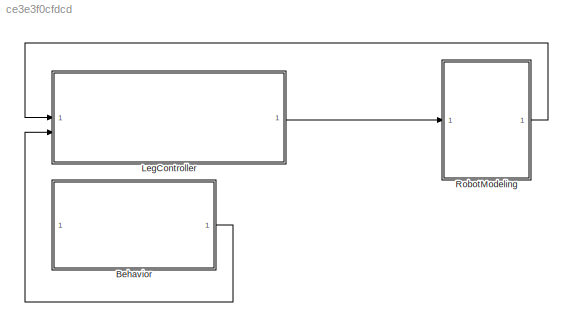
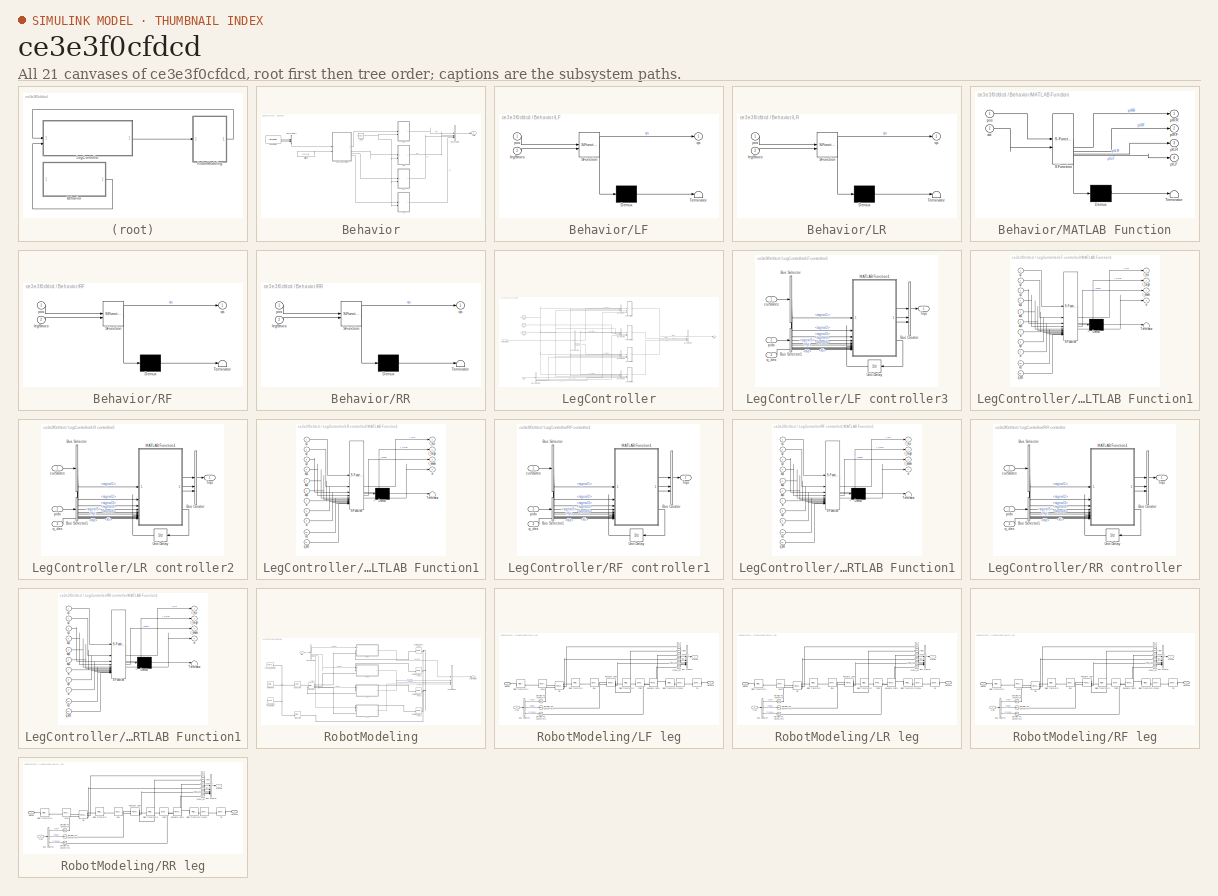
[diagram: thumbnail index - all 21 canvases of the model, root first then tree order]
MODEL slx_ce3e3f0cfdcd
KIND model
CONFIG AbsTol = auto
CONFIG EnableMultiTasking = off
CONFIG FixedStep = auto
CONFIG MaxStep = auto
CONFIG MinStep = auto
CONFIG RelTol = 1e-3
CONFIG SampleTimeConstraint = Unconstrained
CONFIG SolverName = daessc
CONFIG StartTime = 0.0
CONFIG StopTime = 10
BLOCK [SubSystem] Behavior
BLOCK [BusCreator] Behavior/Bus Creator
  DisplayOption = bar
  InheritFromInputs = on
  Inputs = RR,RF,LR,LF
BLOCK [BusCreator] Behavior/Bus Creator1
  DisplayOption = bar
  InheritFromInputs = on
  Inputs = 3
BLOCK [SubSystem] Behavior/LF
  ErrorFcn = Stateflow.Translate.translate
  PermitHierarchicalResolution = ExplicitOnly
  SFBlockType = MATLAB Function
  TreatAsAtomicUnit = on
BLOCK [Demux] Behavior/LF/ Demux 
  Outputs = 1
BLOCK [S-Function] Behavior/LF/ SFunction 
  EnableBusSupport = on
  FunctionName = sf_sfun
  PortCounts = [2 2]
  SFcnIsStateOwnerBlock = off
  SFunctionDeploymentMode = off
  Tag = Stateflow S-Function 8
BLOCK [Terminator] Behavior/LF/ Terminator 
BLOCK [Inport] Behavior/LF/legStrucs
  Port = 2
BLOCK [Inport] Behavior/LF/pos
BLOCK [Outport] Behavior/LF/qs
BLOCK [SubSystem] Behavior/LR
  ErrorFcn = Stateflow.Translate.translate
  PermitHierarchicalResolution = ExplicitOnly
  SFBlockType = MATLAB Function
  TreatAsAtomicUnit = on
BLOCK [Demux] Behavior/LR/ Demux 
  Outputs = 1
BLOCK [S-Function] Behavior/LR/ SFunction 
  EnableBusSupport = on
  FunctionName = sf_sfun
  PortCounts = [2 2]
  SFcnIsStateOwnerBlock = off
  SFunctionDeploymentMode = off
  Tag = Stateflow S-Function 7
BLOCK [Terminator] Behavior/LR/ Terminator 
BLOCK [Inport] Behavior/LR/legStrucs
  Port = 2
BLOCK [Inport] Behavior/LR/pos
BLOCK [Outport] Behavior/LR/qs
BLOCK [Constant] Behavior/Legs
  Value = [0.2;0.8;0.8]
BLOCK [SubSystem] Behavior/MATLAB Function
  ErrorFcn = Stateflow.Translate.translate
  PermitHierarchicalResolution = ExplicitOnly
  SFBlockType = MATLAB Function
  TreatAsAtomicUnit = on
BLOCK [Demux] Behavior/MATLAB Function/ Demux 
  Outputs = 1
BLOCK [S-Function] Behavior/MATLAB Function/ SFunction 
  EnableBusSupport = on
  FunctionName = sf_sfun
  PortCounts = [2 5]
  SFcnIsStateOwnerBlock = off
  SFunctionDeploymentMode = off
  Tag = Stateflow S-Function 9
BLOCK [Terminator] Behavior/MATLAB Function/ Terminator 
BLOCK [Inport] Behavior/MATLAB Function/att
  Port = 2
BLOCK [Outport] Behavior/MATLAB Function/plLF
  Port = 4
BLOCK [Outport] Behavior/MATLAB Function/plLR
  Port = 3
BLOCK [Outport] Behavior/MATLAB Function/plRF
  Port = 2
BLOCK [Outport] Behavior/MATLAB Function/plRR
BLOCK [Inport] Behavior/MATLAB Function/pos
BLOCK [SubSystem] Behavior/RF
  ErrorFcn = Stateflow.Translate.translate
  PermitHierarchicalResolution = ExplicitOnly
  SFBlockType = MATLAB Function
  TreatAsAtomicUnit = on
BLOCK [Demux] Behavior/RF/ Demux 
  Outputs = 1
BLOCK [S-Function] Behavior/RF/ SFunction 
  EnableBusSupport = on
  FunctionName = sf_sfun
  PortCounts = [2 2]
  SFcnIsStateOwnerBlock = off
  SFunctionDeploymentMode = off
  Tag = Stateflow S-Function 6
BLOCK [Terminator] Behavior/RF/ Terminator 
BLOCK [Inport] Behavior/RF/legStrucs
  Port = 2
BLOCK [Inport] Behavior/RF/pos
BLOCK [Outport] Behavior/RF/qs
BLOCK [SubSystem] Behavior/RR
  ErrorFcn = Stateflow.Translate.translate
  PermitHierarchicalResolution = ExplicitOnly
  SFBlockType = MATLAB Function
  TreatAsAtomicUnit = on
BLOCK [Demux] Behavior/RR/ Demux 
  Outputs = 1
BLOCK [S-Function] Behavior/RR/ SFunction 
  EnableBusSupport = on
  FunctionName = sf_sfun
  PortCounts = [2 2]
  SFcnIsStateOwnerBlock = off
  SFunctionDeploymentMode = off
  Tag = Stateflow S-Function 5
BLOCK [Terminator] Behavior/RR/ Terminator 
BLOCK [Inport] Behavior/RR/legStrucs
  Port = 2
BLOCK [Inport] Behavior/RR/pos
BLOCK [Outport] Behavior/RR/qs
BLOCK [Reference] Behavior/Signal Editor  REF=SignalEditorBlockLib/Signal Editor
  LibrarySourceBlock = simulink/Sources/Signal Editor
  SourceBlock = SignalEditorBlockLib/Signal Editor
  SourceType = SignalEditor
  UserDataPersistent = on
BLOCK [Constant] Behavior/attitude
  Value = [0 0 0]
BLOCK [Outport] Behavior/refs
BLOCK [SubSystem] LegController
BLOCK [BusCreator] LegController/Bus Creator
  DisplayOption = bar
  InheritFromInputs = on
  Inputs = Kp,Ki,Kd
BLOCK [BusCreator] LegController/Bus Creator1
  DisplayOption = bar
  InheritFromInputs = on
  Inputs = Kp,Ki,Kd
BLOCK [BusCreator] LegController/Bus Creator2
  DisplayOption = bar
  InheritFromInputs = on
  Inputs = Kp,Ki,Kd
BLOCK [BusCreator] LegController/Bus Creator3
  DisplayOption = bar
  InheritFromInputs = on
  Inputs = Kp,Ki,Kd
BLOCK [BusCreator] LegController/Bus Creator4
  DisplayOption = bar
  InheritFromInputs = on
  Inputs = RRtrqs,RFtrqs,LRtrqs,LFtrqs
BLOCK [BusSelector] LegController/Bus Selector4
  OutputSignals = RRstates,RFstates,LRstates,LFstates
BLOCK [BusSelector] LegController/Bus Selector5
  OutputSignals = RR,RF,LR,LF
BLOCK [Inport] LegController/Current States
BLOCK [Constant] LegController/Kd
  Value = [100;650;600]
BLOCK [Constant] LegController/Ki
  Value = [10;15;5]
BLOCK [Constant] LegController/Kp
  Value = [200;450;450]
BLOCK [SubSystem] LegController/LF controller3
BLOCK [BusCreator] LegController/LF controller3/Bus Creator
  DisplayOption = bar
  InheritFromInputs = on
  Inputs = 3
BLOCK [BusSelector] LegController/LF controller3/Bus Selector
  OutputSignals = signal1,signal2,signal3,signal4,signal5,signal6
BLOCK [BusSelector] LegController/LF controller3/Bus Selector1
  OutputSignals = Kp,Ki,Kd
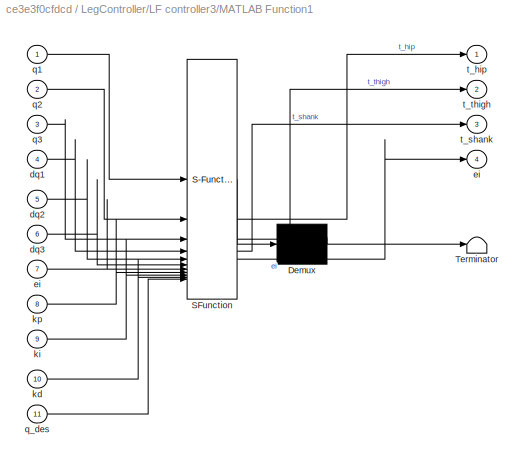
BLOCK [SubSystem] LegController/LF controller3/MATLAB Function1
  ErrorFcn = Stateflow.Translate.translate
  PermitHierarchicalResolution = ExplicitOnly
  SFBlockType = MATLAB Function
  TreatAsAtomicUnit = on
BLOCK [Demux] LegController/LF controller3/MATLAB Function1/ Demux 
  Outputs = 1
BLOCK [S-Function] LegController/LF controller3/MATLAB Function1/ SFunction 
  EnableBusSupport = on
  FunctionName = sf_sfun
  PortCounts = [11 5]
  SFcnIsStateOwnerBlock = off
  SFunctionDeploymentMode = off
  Tag = Stateflow S-Function 4
BLOCK [Terminator] LegController/LF controller3/MATLAB Function1/ Terminator 
BLOCK [Inport] LegController/LF controller3/MATLAB Function1/dq1
  Port = 4
BLOCK [Inport] LegController/LF controller3/MATLAB Function1/dq2
  Port = 5
BLOCK [Inport] LegController/LF controller3/MATLAB Function1/dq3
  Port = 6
BLOCK [Outport] LegController/LF controller3/MATLAB Function1/ei
  Port = 4
BLOCK [Inport] LegController/LF controller3/MATLAB Function1/ei 
  Port = 7
BLOCK [Inport] LegController/LF controller3/MATLAB Function1/kd
  Port = 10
BLOCK [Inport] LegController/LF controller3/MATLAB Function1/ki
  Port = 9
BLOCK [Inport] LegController/LF controller3/MATLAB Function1/kp
  Port = 8
BLOCK [Inport] LegController/LF controller3/MATLAB Function1/q1
BLOCK [Inport] LegController/LF controller3/MATLAB Function1/q2
  Port = 2
BLOCK [Inport] LegController/LF controller3/MATLAB Function1/q3
  Port = 3
BLOCK [Inport] LegController/LF controller3/MATLAB Function1/q_des
  Port = 11
BLOCK [Outport] LegController/LF controller3/MATLAB Function1/t_hip
BLOCK [Outport] LegController/LF controller3/MATLAB Function1/t_shank
  Port = 3
BLOCK [Outport] LegController/LF controller3/MATLAB Function1/t_thigh
  Port = 2
BLOCK [Outport] LegController/LF controller3/Trqs
BLOCK [UnitDelay] LegController/LF controller3/Unit Delay
  HasFrameUpgradeWarning = on
  InitialCondition = [0;0;0]
  SampleTime = -1
BLOCK [Inport] LegController/LF controller3/curStates
BLOCK [Inport] LegController/LF controller3/pids
  Port = 2
BLOCK [Inport] LegController/LF controller3/q_des
  Port = 3
BLOCK [SubSystem] LegController/LR controller2
BLOCK [BusCreator] LegController/LR controller2/Bus Creator
  DisplayOption = bar
  InheritFromInputs = on
  Inputs = 3
BLOCK [BusSelector] LegController/LR controller2/Bus Selector
  OutputSignals = signal1,signal2,signal3,signal4,signal5,signal6
BLOCK [BusSelector] LegController/LR controller2/Bus Selector1
  OutputSignals = Kp,Ki,Kd
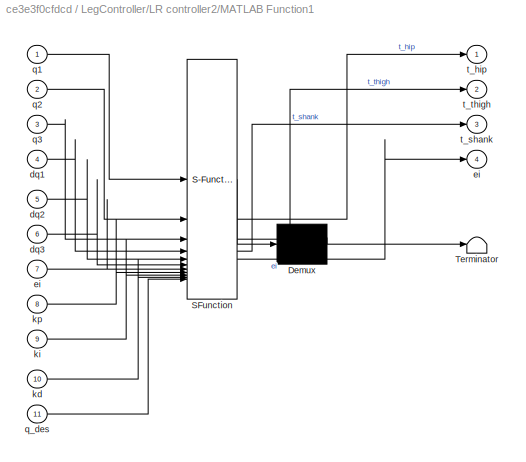
BLOCK [SubSystem] LegController/LR controller2/MATLAB Function1
  ErrorFcn = Stateflow.Translate.translate
  PermitHierarchicalResolution = ExplicitOnly
  SFBlockType = MATLAB Function
  TreatAsAtomicUnit = on
BLOCK [Demux] LegController/LR controller2/MATLAB Function1/ Demux 
  Outputs = 1
BLOCK [S-Function] LegController/LR controller2/MATLAB Function1/ SFunction 
  EnableBusSupport = on
  FunctionName = sf_sfun
  PortCounts = [11 5]
  SFcnIsStateOwnerBlock = off
  SFunctionDeploymentMode = off
  Tag = Stateflow S-Function 3
BLOCK [Terminator] LegController/LR controller2/MATLAB Function1/ Terminator 
BLOCK [Inport] LegController/LR controller2/MATLAB Function1/dq1
  Port = 4
BLOCK [Inport] LegController/LR controller2/MATLAB Function1/dq2
  Port = 5
BLOCK [Inport] LegController/LR controller2/MATLAB Function1/dq3
  Port = 6
BLOCK [Outport] LegController/LR controller2/MATLAB Function1/ei
  Port = 4
BLOCK [Inport] LegController/LR controller2/MATLAB Function1/ei 
  Port = 7
BLOCK [Inport] LegController/LR controller2/MATLAB Function1/kd
  Port = 10
BLOCK [Inport] LegController/LR controller2/MATLAB Function1/ki
  Port = 9
BLOCK [Inport] LegController/LR controller2/MATLAB Function1/kp
  Port = 8
BLOCK [Inport] LegController/LR controller2/MATLAB Function1/q1
BLOCK [Inport] LegController/LR controller2/MATLAB Function1/q2
  Port = 2
BLOCK [Inport] LegController/LR controller2/MATLAB Function1/q3
  Port = 3
BLOCK [Inport] LegController/LR controller2/MATLAB Function1/q_des
  Port = 11
BLOCK [Outport] LegController/LR controller2/MATLAB Function1/t_hip
BLOCK [Outport] LegController/LR controller2/MATLAB Function1/t_shank
  Port = 3
BLOCK [Outport] LegController/LR controller2/MATLAB Function1/t_thigh
  Port = 2
BLOCK [Outport] LegController/LR controller2/Trqs
BLOCK [UnitDelay] LegController/LR controller2/Unit Delay
  HasFrameUpgradeWarning = on
  InitialCondition = [0;0;0]
  SampleTime = -1
BLOCK [Inport] LegController/LR controller2/curStates
BLOCK [Inport] LegController/LR controller2/pids
  Port = 2
BLOCK [Inport] LegController/LR controller2/q_des
  Port = 3
BLOCK [SubSystem] LegController/RF controller1
BLOCK [BusCreator] LegController/RF controller1/Bus Creator
  DisplayOption = bar
  InheritFromInputs = on
  Inputs = 3
BLOCK [BusSelector] LegController/RF controller1/Bus Selector
  OutputSignals = signal1,signal2,signal3,signal4,signal5,signal6
BLOCK [BusSelector] LegController/RF controller1/Bus Selector1
  OutputSignals = Kp,Ki,Kd
BLOCK [SubSystem] LegController/RF controller1/MATLAB Function1
  ErrorFcn = Stateflow.Translate.translate
  PermitHierarchicalResolution = ExplicitOnly
  SFBlockType = MATLAB Function
  TreatAsAtomicUnit = on
BLOCK [Demux] LegController/RF controller1/MATLAB Function1/ Demux 
  Outputs = 1
BLOCK [S-Function] LegController/RF controller1/MATLAB Function1/ SFunction 
  EnableBusSupport = on
  FunctionName = sf_sfun
  PortCounts = [11 5]
  SFcnIsStateOwnerBlock = off
  SFunctionDeploymentMode = off
  Tag = Stateflow S-Function 2
BLOCK [Terminator] LegController/RF controller1/MATLAB Function1/ Terminator 
BLOCK [Inport] LegController/RF controller1/MATLAB Function1/dq1
  Port = 4
BLOCK [Inport] LegController/RF controller1/MATLAB Function1/dq2
  Port = 5
BLOCK [Inport] LegController/RF controller1/MATLAB Function1/dq3
  Port = 6
BLOCK [Outport] LegController/RF controller1/MATLAB Function1/ei
  Port = 4
BLOCK [Inport] LegController/RF controller1/MATLAB Function1/ei 
  Port = 7
BLOCK [Inport] LegController/RF controller1/MATLAB Function1/kd
  Port = 10
BLOCK [Inport] LegController/RF controller1/MATLAB Function1/ki
  Port = 9
BLOCK [Inport] LegController/RF controller1/MATLAB Function1/kp
  Port = 8
BLOCK [Inport] LegController/RF controller1/MATLAB Function1/q1
BLOCK [Inport] LegController/RF controller1/MATLAB Function1/q2
  Port = 2
BLOCK [Inport] LegController/RF controller1/MATLAB Function1/q3
  Port = 3
BLOCK [Inport] LegController/RF controller1/MATLAB Function1/q_des
  Port = 11
BLOCK [Outport] LegController/RF controller1/MATLAB Function1/t_hip
BLOCK [Outport] LegController/RF controller1/MATLAB Function1/t_shank
  Port = 3
BLOCK [Outport] LegController/RF controller1/MATLAB Function1/t_thigh
  Port = 2
BLOCK [Outport] LegController/RF controller1/Trqs
BLOCK [UnitDelay] LegController/RF controller1/Unit Delay
  HasFrameUpgradeWarning = on
  InitialCondition = [0;0;0]
  SampleTime = -1
BLOCK [Inport] LegController/RF controller1/curStates
BLOCK [Inport] LegController/RF controller1/pids
  Port = 2
BLOCK [Inport] LegController/RF controller1/q_des
  Port = 3
BLOCK [SubSystem] LegController/RR controller
BLOCK [BusCreator] LegController/RR controller/Bus Creator
  DisplayOption = bar
  InheritFromInputs = on
  Inputs = 3
BLOCK [BusSelector] LegController/RR controller/Bus Selector
  OutputSignals = signal1,signal2,signal3,signal4,signal5,signal6
BLOCK [BusSelector] LegController/RR controller/Bus Selector1
  OutputSignals = Kp,Ki,Kd
BLOCK [SubSystem] LegController/RR controller/MATLAB Function1
  ErrorFcn = Stateflow.Translate.translate
  PermitHierarchicalResolution = ExplicitOnly
  SFBlockType = MATLAB Function
  TreatAsAtomicUnit = on
BLOCK [Demux] LegController/RR controller/MATLAB Function1/ Demux 
  Outputs = 1
BLOCK [S-Function] LegController/RR controller/MATLAB Function1/ SFunction 
  EnableBusSupport = on
  FunctionName = sf_sfun
  PortCounts = [11 5]
  SFcnIsStateOwnerBlock = off
  SFunctionDeploymentMode = off
  Tag = Stateflow S-Function 1
BLOCK [Terminator] LegController/RR controller/MATLAB Function1/ Terminator 
BLOCK [Inport] LegController/RR controller/MATLAB Function1/dq1
  Port = 4
BLOCK [Inport] LegController/RR controller/MATLAB Function1/dq2
  Port = 5
BLOCK [Inport] LegController/RR controller/MATLAB Function1/dq3
  Port = 6
BLOCK [Outport] LegController/RR controller/MATLAB Function1/ei
  Port = 4
BLOCK [Inport] LegController/RR controller/MATLAB Function1/ei 
  Port = 7
BLOCK [Inport] LegController/RR controller/MATLAB Function1/kd
  Port = 10
BLOCK [Inport] LegController/RR controller/MATLAB Function1/ki
  Port = 9
BLOCK [Inport] LegController/RR controller/MATLAB Function1/kp
  Port = 8
BLOCK [Inport] LegController/RR controller/MATLAB Function1/q1
BLOCK [Inport] LegController/RR controller/MATLAB Function1/q2
  Port = 2
BLOCK [Inport] LegController/RR controller/MATLAB Function1/q3
  Port = 3
BLOCK [Inport] LegController/RR controller/MATLAB Function1/q_des
  Port = 11
BLOCK [Outport] LegController/RR controller/MATLAB Function1/t_hip
BLOCK [Outport] LegController/RR controller/MATLAB Function1/t_shank
  Port = 3
BLOCK [Outport] LegController/RR controller/MATLAB Function1/t_thigh
  Port = 2
BLOCK [Outport] LegController/RR controller/Trqs
BLOCK [UnitDelay] LegController/RR controller/Unit Delay
  HasFrameUpgradeWarning = on
  InitialCondition = [0;0;0]
  SampleTime = -1
BLOCK [Inport] LegController/RR controller/curStates
BLOCK [Inport] LegController/RR controller/pids
  Port = 2
BLOCK [Inport] LegController/RR controller/q_des
  Port = 3
BLOCK [Inport] LegController/ref
  Port = 2
BLOCK [Outport] LegController/trqs
BLOCK [SubSystem] RobotModeling
BLOCK [Reference] RobotModeling/6-DOF Joint  REF=sm_lib/Joints/6-DOF Joint
  SourceBlock = sm_lib/Joints/6-DOF Joint
  SourceType = 6-DOF Joint
BLOCK [Reference] RobotModeling/Brick Solid  REF=sm_lib/Body Elements/Brick Solid
  SourceBlock = sm_lib/Body Elements/Brick Solid
  SourceType = Brick Solid
BLOCK [Reference] RobotModeling/Brick Solid1  REF=sm_lib/Body Elements/Brick Solid
  SourceBlock = sm_lib/Body Elements/Brick Solid
  SourceType = Brick Solid
BLOCK [BusCreator] RobotModeling/Bus Creator4
  DisplayOption = bar
  InheritFromInputs = on
  Inputs = RRstates,RFstates,LRstates,LFstates
BLOCK [BusSelector] RobotModeling/Bus Selector4
  OutputSignals = RRtrqs,RFtrqs,LRtrqs,LFtrqs
BLOCK [SubSystem] RobotModeling/LF leg
BLOCK [BusCreator] RobotModeling/LF leg/Bus Creator
  DisplayOption = bar
  InheritFromInputs = on
  Inputs = 6
BLOCK [BusSelector] RobotModeling/LF leg/Bus Selector
  OutputSignals = t_hip,t_thigh,t_shank
BLOCK [Reference] RobotModeling/LF leg/Revolute Joint  REF=sm_lib/Joints/Revolute Joint
  SourceBlock = sm_lib/Joints/Revolute Joint
  SourceType = Revolute Joint
BLOCK [Reference] RobotModeling/LF leg/Revolute Joint1  REF=sm_lib/Joints/Revolute Joint
  SourceBlock = sm_lib/Joints/Revolute Joint
  SourceType = Revolute Joint
BLOCK [Reference] RobotModeling/LF leg/Rigid Transform  REF=sm_lib/Frames and
Transforms/Rigid
Transform
  SourceBlock = sm_lib/Frames and\nTransforms/Rigid\nTransform
  SourceType = Rigid\nTransform
BLOCK [Reference] RobotModeling/LF leg/Rigid Transform2  REF=sm_lib/Frames and
Transforms/Rigid
Transform
  SourceBlock = sm_lib/Frames and\nTransforms/Rigid\nTransform
  SourceType = Rigid\nTransform
BLOCK [Reference] RobotModeling/LF leg/Rigid Transform3  REF=sm_lib/Frames and
Transforms/Rigid
Transform
  SourceBlock = sm_lib/Frames and\nTransforms/Rigid\nTransform
  SourceType = Rigid\nTransform
BLOCK [Reference] RobotModeling/LF leg/Rigid Transform4  REF=sm_lib/Frames and
Transforms/Rigid
Transform
  SourceBlock = sm_lib/Frames and\nTransforms/Rigid\nTransform
  SourceType = Rigid\nTransform
BLOCK [Reference] RobotModeling/LF leg/Simulink-PS Converter  REF=nesl_utility/Simulink-PS
Converter
  SourceBlock = nesl_utility/Simulink-PS\nConverter
  SourceType = Simulink-PS\nConverter
BLOCK [Reference] RobotModeling/LF leg/Simulink-PS Converter1  REF=nesl_utility/Simulink-PS
Converter
  SourceBlock = nesl_utility/Simulink-PS\nConverter
  SourceType = Simulink-PS\nConverter
BLOCK [Reference] RobotModeling/LF leg/Simulink-PS Converter2  REF=nesl_utility/Simulink-PS
Converter
  SourceBlock = nesl_utility/Simulink-PS\nConverter
  SourceType = Simulink-PS\nConverter
BLOCK [Reference] RobotModeling/LF leg/base  REF=sm_lib/Body Elements/Brick Solid
  SourceBlock = sm_lib/Body Elements/Brick Solid
  SourceType = Brick Solid
BLOCK [Reference] RobotModeling/LF leg/hip  REF=sm_lib/Joints/Revolute Joint
  SourceBlock = sm_lib/Joints/Revolute Joint
  SourceType = Revolute Joint
BLOCK [Reference] RobotModeling/LF leg/hip_dq  REF=nesl_utility/PS-Simulink
Converter
  SourceBlock = nesl_utility/PS-Simulink\nConverter
  SourceType = PS-Simulink\nConverter
BLOCK [Reference] RobotModeling/LF leg/hip_q  REF=nesl_utility/PS-Simulink
Converter
  SourceBlock = nesl_utility/PS-Simulink\nConverter
  SourceType = PS-Simulink\nConverter
BLOCK [PMIOPort] RobotModeling/LF leg/hipcon
  Port = 2
  Side = Left
BLOCK [Reference] RobotModeling/LF leg/link1  REF=sm_lib/Body Elements/Brick Solid
  SourceBlock = sm_lib/Body Elements/Brick Solid
  SourceType = Brick Solid
BLOCK [Reference] RobotModeling/LF leg/shank  REF=sm_lib/Body Elements/Brick Solid
  SourceBlock = sm_lib/Body Elements/Brick Solid
  SourceType = Brick Solid
BLOCK [Reference] RobotModeling/LF leg/shank_dq  REF=nesl_utility/PS-Simulink
Converter
  SourceBlock = nesl_utility/PS-Simulink\nConverter
  SourceType = PS-Simulink\nConverter
BLOCK [Reference] RobotModeling/LF leg/shank_q  REF=nesl_utility/PS-Simulink
Converter
  SourceBlock = nesl_utility/PS-Simulink\nConverter
  SourceType = PS-Simulink\nConverter
BLOCK [Outport] RobotModeling/LF leg/states
BLOCK [Reference] RobotModeling/LF leg/thigh  REF=sm_lib/Body Elements/Brick Solid
  SourceBlock = sm_lib/Body Elements/Brick Solid
  SourceType = Brick Solid
BLOCK [Reference] RobotModeling/LF leg/thigh_dq  REF=nesl_utility/PS-Simulink
Converter
  SourceBlock = nesl_utility/PS-Simulink\nConverter
  SourceType = PS-Simulink\nConverter
BLOCK [Reference] RobotModeling/LF leg/thigh_q  REF=nesl_utility/PS-Simulink
Converter
  SourceBlock = nesl_utility/PS-Simulink\nConverter
  SourceType = PS-Simulink\nConverter
BLOCK [Reference] RobotModeling/LF leg/tip  REF=sm_lib/Body Elements/Spherical Solid
  SourceBlock = sm_lib/Body Elements/Spherical Solid
  SourceType = Spherical Solid
BLOCK [PMIOPort] RobotModeling/LF leg/tiptouch
  Side = Left
BLOCK [Inport] RobotModeling/LF leg/trqs
BLOCK [SubSystem] RobotModeling/LR leg
BLOCK [BusCreator] RobotModeling/LR leg/Bus Creator
  DisplayOption = bar
  InheritFromInputs = on
  Inputs = 6
BLOCK [BusSelector] RobotModeling/LR leg/Bus Selector
  OutputSignals = t_hip,t_thigh,t_shank
BLOCK [Reference] RobotModeling/LR leg/Revolute Joint  REF=sm_lib/Joints/Revolute Joint
  SourceBlock = sm_lib/Joints/Revolute Joint
  SourceType = Revolute Joint
BLOCK [Reference] RobotModeling/LR leg/Revolute Joint1  REF=sm_lib/Joints/Revolute Joint
  SourceBlock = sm_lib/Joints/Revolute Joint
  SourceType = Revolute Joint
BLOCK [Reference] RobotModeling/LR leg/Rigid Transform  REF=sm_lib/Frames and
Transforms/Rigid
Transform
  SourceBlock = sm_lib/Frames and\nTransforms/Rigid\nTransform
  SourceType = Rigid\nTransform
BLOCK [Reference] RobotModeling/LR leg/Rigid Transform2  REF=sm_lib/Frames and
Transforms/Rigid
Transform
  SourceBlock = sm_lib/Frames and\nTransforms/Rigid\nTransform
  SourceType = Rigid\nTransform
BLOCK [Reference] RobotModeling/LR leg/Rigid Transform3  REF=sm_lib/Frames and
Transforms/Rigid
Transform
  SourceBlock = sm_lib/Frames and\nTransforms/Rigid\nTransform
  SourceType = Rigid\nTransform
BLOCK [Reference] RobotModeling/LR leg/Rigid Transform4  REF=sm_lib/Frames and
Transforms/Rigid
Transform
  SourceBlock = sm_lib/Frames and\nTransforms/Rigid\nTransform
  SourceType = Rigid\nTransform
BLOCK [Reference] RobotModeling/LR leg/Simulink-PS Converter  REF=nesl_utility/Simulink-PS
Converter
  SourceBlock = nesl_utility/Simulink-PS\nConverter
  SourceType = Simulink-PS\nConverter
BLOCK [Reference] RobotModeling/LR leg/Simulink-PS Converter1  REF=nesl_utility/Simulink-PS
Converter
  SourceBlock = nesl_utility/Simulink-PS\nConverter
  SourceType = Simulink-PS\nConverter
BLOCK [Reference] RobotModeling/LR leg/Simulink-PS Converter2  REF=nesl_utility/Simulink-PS
Converter
  SourceBlock = nesl_utility/Simulink-PS\nConverter
  SourceType = Simulink-PS\nConverter
BLOCK [Reference] RobotModeling/LR leg/base  REF=sm_lib/Body Elements/Brick Solid
  SourceBlock = sm_lib/Body Elements/Brick Solid
  SourceType = Brick Solid
BLOCK [Reference] RobotModeling/LR leg/hip  REF=sm_lib/Joints/Revolute Joint
  SourceBlock = sm_lib/Joints/Revolute Joint
  SourceType = Revolute Joint
BLOCK [Reference] RobotModeling/LR leg/hip_dq  REF=nesl_utility/PS-Simulink
Converter
  SourceBlock = nesl_utility/PS-Simulink\nConverter
  SourceType = PS-Simulink\nConverter
BLOCK [Reference] RobotModeling/LR leg/hip_q  REF=nesl_utility/PS-Simulink
Converter
  SourceBlock = nesl_utility/PS-Simulink\nConverter
  SourceType = PS-Simulink\nConverter
BLOCK [PMIOPort] RobotModeling/LR leg/hipcon
  Port = 2
  Side = Left
BLOCK [Reference] RobotModeling/LR leg/link1  REF=sm_lib/Body Elements/Brick Solid
  SourceBlock = sm_lib/Body Elements/Brick Solid
  SourceType = Brick Solid
BLOCK [Reference] RobotModeling/LR leg/shank  REF=sm_lib/Body Elements/Brick Solid
  SourceBlock = sm_lib/Body Elements/Brick Solid
  SourceType = Brick Solid
BLOCK [Reference] RobotModeling/LR leg/shank_dq  REF=nesl_utility/PS-Simulink
Converter
  SourceBlock = nesl_utility/PS-Simulink\nConverter
  SourceType = PS-Simulink\nConverter
BLOCK [Reference] RobotModeling/LR leg/shank_q  REF=nesl_utility/PS-Simulink
Converter
  SourceBlock = nesl_utility/PS-Simulink\nConverter
  SourceType = PS-Simulink\nConverter
BLOCK [Outport] RobotModeling/LR leg/states
BLOCK [Reference] RobotModeling/LR leg/thigh  REF=sm_lib/Body Elements/Brick Solid
  SourceBlock = sm_lib/Body Elements/Brick Solid
  SourceType = Brick Solid
BLOCK [Reference] RobotModeling/LR leg/thigh_dq  REF=nesl_utility/PS-Simulink
Converter
  SourceBlock = nesl_utility/PS-Simulink\nConverter
  SourceType = PS-Simulink\nConverter
BLOCK [Reference] RobotModeling/LR leg/thigh_q  REF=nesl_utility/PS-Simulink
Converter
  SourceBlock = nesl_utility/PS-Simulink\nConverter
  SourceType = PS-Simulink\nConverter
BLOCK [Reference] RobotModeling/LR leg/tip  REF=sm_lib/Body Elements/Spherical Solid
  SourceBlock = sm_lib/Body Elements/Spherical Solid
  SourceType = Spherical Solid
BLOCK [PMIOPort] RobotModeling/LR leg/tiptouch
  Side = Left
BLOCK [Inport] RobotModeling/LR leg/trqs
BLOCK [Reference] RobotModeling/Mechanism Configuration  REF=sm_lib/Utilities/Mechanism
Configuration
  SourceBlock = sm_lib/Utilities/Mechanism\nConfiguration
  SourceType = Mechanism\nConfiguration
BLOCK [SubSystem] RobotModeling/RF leg
BLOCK [BusCreator] RobotModeling/RF leg/Bus Creator
  DisplayOption = bar
  InheritFromInputs = on
  Inputs = 6
BLOCK [BusSelector] RobotModeling/RF leg/Bus Selector
  OutputSignals = t_hip,t_thigh,t_shank
BLOCK [Reference] RobotModeling/RF leg/Revolute Joint  REF=sm_lib/Joints/Revolute Joint
  SourceBlock = sm_lib/Joints/Revolute Joint
  SourceType = Revolute Joint
BLOCK [Reference] RobotModeling/RF leg/Revolute Joint1  REF=sm_lib/Joints/Revolute Joint
  SourceBlock = sm_lib/Joints/Revolute Joint
  SourceType = Revolute Joint
BLOCK [Reference] RobotModeling/RF leg/Rigid Transform  REF=sm_lib/Frames and
Transforms/Rigid
Transform
  SourceBlock = sm_lib/Frames and\nTransforms/Rigid\nTransform
  SourceType = Rigid\nTransform
BLOCK [Reference] RobotModeling/RF leg/Rigid Transform2  REF=sm_lib/Frames and
Transforms/Rigid
Transform
  SourceBlock = sm_lib/Frames and\nTransforms/Rigid\nTransform
  SourceType = Rigid\nTransform
BLOCK [Reference] RobotModeling/RF leg/Rigid Transform3  REF=sm_lib/Frames and
Transforms/Rigid
Transform
  SourceBlock = sm_lib/Frames and\nTransforms/Rigid\nTransform
  SourceType = Rigid\nTransform
BLOCK [Reference] RobotModeling/RF leg/Rigid Transform4  REF=sm_lib/Frames and
Transforms/Rigid
Transform
  SourceBlock = sm_lib/Frames and\nTransforms/Rigid\nTransform
  SourceType = Rigid\nTransform
BLOCK [Reference] RobotModeling/RF leg/Simulink-PS Converter  REF=nesl_utility/Simulink-PS
Converter
  SourceBlock = nesl_utility/Simulink-PS\nConverter
  SourceType = Simulink-PS\nConverter
BLOCK [Reference] RobotModeling/RF leg/Simulink-PS Converter1  REF=nesl_utility/Simulink-PS
Converter
  SourceBlock = nesl_utility/Simulink-PS\nConverter
  SourceType = Simulink-PS\nConverter
BLOCK [Reference] RobotModeling/RF leg/Simulink-PS Converter2  REF=nesl_utility/Simulink-PS
Converter
  SourceBlock = nesl_utility/Simulink-PS\nConverter
  SourceType = Simulink-PS\nConverter
BLOCK [Reference] RobotModeling/RF leg/base  REF=sm_lib/Body Elements/Brick Solid
  SourceBlock = sm_lib/Body Elements/Brick Solid
  SourceType = Brick Solid
BLOCK [Reference] RobotModeling/RF leg/hip  REF=sm_lib/Joints/Revolute Joint
  SourceBlock = sm_lib/Joints/Revolute Joint
  SourceType = Revolute Joint
BLOCK [Reference] RobotModeling/RF leg/hip_dq  REF=nesl_utility/PS-Simulink
Converter
  SourceBlock = nesl_utility/PS-Simulink\nConverter
  SourceType = PS-Simulink\nConverter
BLOCK [Reference] RobotModeling/RF leg/hip_q  REF=nesl_utility/PS-Simulink
Converter
  SourceBlock = nesl_utility/PS-Simulink\nConverter
  SourceType = PS-Simulink\nConverter
BLOCK [PMIOPort] RobotModeling/RF leg/hipcon
  Port = 2
  Side = Left
BLOCK [Reference] RobotModeling/RF leg/link1  REF=sm_lib/Body Elements/Brick Solid
  SourceBlock = sm_lib/Body Elements/Brick Solid
  SourceType = Brick Solid
BLOCK [Reference] RobotModeling/RF leg/shank  REF=sm_lib/Body Elements/Brick Solid
  SourceBlock = sm_lib/Body Elements/Brick Solid
  SourceType = Brick Solid
BLOCK [Reference] RobotModeling/RF leg/shank_dq  REF=nesl_utility/PS-Simulink
Converter
  SourceBlock = nesl_utility/PS-Simulink\nConverter
  SourceType = PS-Simulink\nConverter
BLOCK [Reference] RobotModeling/RF leg/shank_q  REF=nesl_utility/PS-Simulink
Converter
  SourceBlock = nesl_utility/PS-Simulink\nConverter
  SourceType = PS-Simulink\nConverter
BLOCK [Outport] RobotModeling/RF leg/states
BLOCK [Reference] RobotModeling/RF leg/thigh  REF=sm_lib/Body Elements/Brick Solid
  SourceBlock = sm_lib/Body Elements/Brick Solid
  SourceType = Brick Solid
BLOCK [Reference] RobotModeling/RF leg/thigh_dq  REF=nesl_utility/PS-Simulink
Converter
  SourceBlock = nesl_utility/PS-Simulink\nConverter
  SourceType = PS-Simulink\nConverter
BLOCK [Reference] RobotModeling/RF leg/thigh_q  REF=nesl_utility/PS-Simulink
Converter
  SourceBlock = nesl_utility/PS-Simulink\nConverter
  SourceType = PS-Simulink\nConverter
BLOCK [Reference] RobotModeling/RF leg/tip  REF=sm_lib/Body Elements/Spherical Solid
  SourceBlock = sm_lib/Body Elements/Spherical Solid
  SourceType = Spherical Solid
BLOCK [PMIOPort] RobotModeling/RF leg/tiptouch
  Side = Left
BLOCK [Inport] RobotModeling/RF leg/trqs
BLOCK [SubSystem] RobotModeling/RR leg
BLOCK [BusCreator] RobotModeling/RR leg/Bus Creator
  DisplayOption = bar
  InheritFromInputs = on
  Inputs = 6
BLOCK [BusSelector] RobotModeling/RR leg/Bus Selector
  OutputSignals = t_hip,t_thigh,t_shank
BLOCK [Reference] RobotModeling/RR leg/Revolute Joint  REF=sm_lib/Joints/Revolute Joint
  SourceBlock = sm_lib/Joints/Revolute Joint
  SourceType = Revolute Joint
BLOCK [Reference] RobotModeling/RR leg/Revolute Joint1  REF=sm_lib/Joints/Revolute Joint
  SourceBlock = sm_lib/Joints/Revolute Joint
  SourceType = Revolute Joint
BLOCK [Reference] RobotModeling/RR leg/Rigid Transform  REF=sm_lib/Frames and
Transforms/Rigid
Transform
  SourceBlock = sm_lib/Frames and\nTransforms/Rigid\nTransform
  SourceType = Rigid\nTransform
BLOCK [Reference] RobotModeling/RR leg/Rigid Transform2  REF=sm_lib/Frames and
Transforms/Rigid
Transform
  SourceBlock = sm_lib/Frames and\nTransforms/Rigid\nTransform
  SourceType = Rigid\nTransform
BLOCK [Reference] RobotModeling/RR leg/Rigid Transform3  REF=sm_lib/Frames and
Transforms/Rigid
Transform
  SourceBlock = sm_lib/Frames and\nTransforms/Rigid\nTransform
  SourceType = Rigid\nTransform
BLOCK [Reference] RobotModeling/RR leg/Rigid Transform4  REF=sm_lib/Frames and
Transforms/Rigid
Transform
  SourceBlock = sm_lib/Frames and\nTransforms/Rigid\nTransform
  SourceType = Rigid\nTransform
BLOCK [Reference] RobotModeling/RR leg/Simulink-PS Converter  REF=nesl_utility/Simulink-PS
Converter
  SourceBlock = nesl_utility/Simulink-PS\nConverter
  SourceType = Simulink-PS\nConverter
BLOCK [Reference] RobotModeling/RR leg/Simulink-PS Converter1  REF=nesl_utility/Simulink-PS
Converter
  SourceBlock = nesl_utility/Simulink-PS\nConverter
  SourceType = Simulink-PS\nConverter
BLOCK [Reference] RobotModeling/RR leg/Simulink-PS Converter2  REF=nesl_utility/Simulink-PS
Converter
  SourceBlock = nesl_utility/Simulink-PS\nConverter
  SourceType = Simulink-PS\nConverter
BLOCK [Reference] RobotModeling/RR leg/base  REF=sm_lib/Body Elements/Brick Solid
  SourceBlock = sm_lib/Body Elements/Brick Solid
  SourceType = Brick Solid
BLOCK [Reference] RobotModeling/RR leg/hip  REF=sm_lib/Joints/Revolute Joint
  SourceBlock = sm_lib/Joints/Revolute Joint
  SourceType = Revolute Joint
BLOCK [Reference] RobotModeling/RR leg/hip_dq  REF=nesl_utility/PS-Simulink
Converter
  SourceBlock = nesl_utility/PS-Simulink\nConverter
  SourceType = PS-Simulink\nConverter
BLOCK [Reference] RobotModeling/RR leg/hip_q  REF=nesl_utility/PS-Simulink
Converter
  SourceBlock = nesl_utility/PS-Simulink\nConverter
  SourceType = PS-Simulink\nConverter
BLOCK [PMIOPort] RobotModeling/RR leg/hipcon
  Port = 2
  Side = Left
BLOCK [Reference] RobotModeling/RR leg/link1  REF=sm_lib/Body Elements/Brick Solid
  SourceBlock = sm_lib/Body Elements/Brick Solid
  SourceType = Brick Solid
BLOCK [Reference] RobotModeling/RR leg/shank  REF=sm_lib/Body Elements/Brick Solid
  SourceBlock = sm_lib/Body Elements/Brick Solid
  SourceType = Brick Solid
BLOCK [Reference] RobotModeling/RR leg/shank_dq  REF=nesl_utility/PS-Simulink
Converter
  SourceBlock = nesl_utility/PS-Simulink\nConverter
  SourceType = PS-Simulink\nConverter
BLOCK [Reference] RobotModeling/RR leg/shank_q  REF=nesl_utility/PS-Simulink
Converter
  SourceBlock = nesl_utility/PS-Simulink\nConverter
  SourceType = PS-Simulink\nConverter
BLOCK [Outport] RobotModeling/RR leg/states
BLOCK [Reference] RobotModeling/RR leg/thigh  REF=sm_lib/Body Elements/Brick Solid
  SourceBlock = sm_lib/Body Elements/Brick Solid
  SourceType = Brick Solid
BLOCK [Reference] RobotModeling/RR leg/thigh_dq  REF=nesl_utility/PS-Simulink
Converter
  SourceBlock = nesl_utility/PS-Simulink\nConverter
  SourceType = PS-Simulink\nConverter
BLOCK [Reference] RobotModeling/RR leg/thigh_q  REF=nesl_utility/PS-Simulink
Converter
  SourceBlock = nesl_utility/PS-Simulink\nConverter
  SourceType = PS-Simulink\nConverter
BLOCK [Reference] RobotModeling/RR leg/tip  REF=sm_lib/Body Elements/Spherical Solid
  SourceBlock = sm_lib/Body Elements/Spherical Solid
  SourceType = Spherical Solid
BLOCK [PMIOPort] RobotModeling/RR leg/tiptouch
  Side = Left
BLOCK [Inport] RobotModeling/RR leg/trqs
BLOCK [Reference] RobotModeling/Solver Configuration  REF=nesl_utility/Solver
Configuration
  SourceBlock = nesl_utility/Solver\nConfiguration
  SourceType = Solver\nConfiguration
BLOCK [Reference] RobotModeling/Spatial Contact Force  REF=sm_lib/Forces and
Torques/Spatial
Contact Force
  SourceBlock = sm_lib/Forces and\nTorques/Spatial\nContact Force
  SourceType = Spatial\nContact Force
BLOCK [Reference] RobotModeling/Spatial Contact Force1  REF=sm_lib/Forces and
Torques/Spatial
Contact Force
  SourceBlock = sm_lib/Forces and\nTorques/Spatial\nContact Force
  SourceType = Spatial\nContact Force
BLOCK [Reference] RobotModeling/Spatial Contact Force2  REF=sm_lib/Forces and
Torques/Spatial
Contact Force
  SourceBlock = sm_lib/Forces and\nTorques/Spatial\nContact Force
  SourceType = Spatial\nContact Force
BLOCK [Reference] RobotModeling/Spatial Contact Force3  REF=sm_lib/Forces and
Torques/Spatial
Contact Force
  SourceBlock = sm_lib/Forces and\nTorques/Spatial\nContact Force
  SourceType = Spatial\nContact Force
BLOCK [Reference] RobotModeling/World Frame  REF=sm_lib/Frames and
Transforms/World Frame
  SourceBlock = sm_lib/Frames and\nTransforms/World Frame
  SourceType = World Frame
BLOCK [Outport] RobotModeling/current States
BLOCK [Inport] RobotModeling/trqs
LINE Behavior/Bus Creator1:1 -> Behavior/MATLAB Function:1
LINE Behavior/Bus Creator:1 -> Behavior/refs:1
LINE Behavior/LF:1 -> Behavior/Bus Creator:4
LINE Behavior/LR:1 -> Behavior/Bus Creator:3
NET Behavior/Legs:1 -> Behavior/LF:2, Behavior/LR:2, Behavior/RF:2, Behavior/RR:2
LINE Behavior/MATLAB Function:1 -> Behavior/RR:1
LINE Behavior/MATLAB Function:2 -> Behavior/RF:1
LINE Behavior/MATLAB Function:3 -> Behavior/LR:1
LINE Behavior/MATLAB Function:4 -> Behavior/LF:1
LINE Behavior/RF:1 -> Behavior/Bus Creator:2
LINE Behavior/RR:1 -> Behavior/Bus Creator:1
LINE Behavior/Signal Editor:1 -> Behavior/Bus Creator1:1
LINE Behavior/Signal Editor:2 -> Behavior/Bus Creator1:2
LINE Behavior/Signal Editor:3 -> Behavior/Bus Creator1:3
LINE Behavior/attitude:1 -> Behavior/MATLAB Function:2
LINE Behavior:1 -> LegController:2
LINE LegController/Bus Creator1:1 -> LegController/RF controller1:2
LINE LegController/Bus Creator2:1 -> LegController/LR controller2:2
LINE LegController/Bus Creator3:1 -> LegController/LF controller3:2
LINE LegController/Bus Creator4:1 -> LegController/trqs:1
LINE LegController/Bus Creator:1 -> LegController/RR controller:2
LINE LegController/Bus Selector4:1 -> LegController/RR controller:1
LINE LegController/Bus Selector4:2 -> LegController/RF controller1:1
LINE LegController/Bus Selector4:3 -> LegController/LR controller2:1
LINE LegController/Bus Selector4:4 -> LegController/LF controller3:1
LINE LegController/Bus Selector5:1 -> LegController/RR controller:3
LINE LegController/Bus Selector5:2 -> LegController/RF controller1:3
LINE LegController/Bus Selector5:3 -> LegController/LR controller2:3
LINE LegController/Bus Selector5:4 -> LegController/LF controller3:3
LINE LegController/Current States:1 -> LegController/Bus Selector4:1
NET LegController/Kd:1 -> LegController/Bus Creator1:3, LegController/Bus Creator2:3, LegController/Bus Creator3:3, LegController/Bus Creator:3
NET LegController/Ki:1 -> LegController/Bus Creator1:2, LegController/Bus Creator2:2, LegController/Bus Creator3:2, LegController/Bus Creator:2
NET LegController/Kp:1 -> LegController/Bus Creator1:1, LegController/Bus Creator2:1, LegController/Bus Creator3:1, LegController/Bus Creator:1
LINE LegController/LF controller3/Bus Creator:1 -> LegController/LF controller3/Trqs:1
LINE LegController/LF controller3/Bus Selector1:1 -> LegController/LF controller3/MATLAB Function1:8
LINE LegController/LF controller3/Bus Selector1:2 -> LegController/LF controller3/MATLAB Function1:9
LINE LegController/LF controller3/Bus Selector1:3 -> LegController/LF controller3/MATLAB Function1:10
LINE LegController/LF controller3/Bus Selector:1 -> LegController/LF controller3/MATLAB Function1:1
LINE LegController/LF controller3/Bus Selector:2 -> LegController/LF controller3/MATLAB Function1:2
LINE LegController/LF controller3/Bus Selector:3 -> LegController/LF controller3/MATLAB Function1:3
LINE LegController/LF controller3/Bus Selector:4 -> LegController/LF controller3/MATLAB Function1:4
LINE LegController/LF controller3/Bus Selector:5 -> LegController/LF controller3/MATLAB Function1:5
LINE LegController/LF controller3/Bus Selector:6 -> LegController/LF controller3/MATLAB Function1:6
LINE LegController/LF controller3/MATLAB Function1:1 -> LegController/LF controller3/Bus Creator:1
LINE LegController/LF controller3/MATLAB Function1:2 -> LegController/LF controller3/Bus Creator:2
LINE LegController/LF controller3/MATLAB Function1:3 -> LegController/LF controller3/Bus Creator:3
LINE LegController/LF controller3/MATLAB Function1:4 -> LegController/LF controller3/Unit Delay:1
LINE LegController/LF controller3/Unit Delay:1 -> LegController/LF controller3/MATLAB Function1:7
LINE LegController/LF controller3/curStates:1 -> LegController/LF controller3/Bus Selector:1
LINE LegController/LF controller3/pids:1 -> LegController/LF controller3/Bus Selector1:1
LINE LegController/LF controller3/q_des:1 -> LegController/LF controller3/MATLAB Function1:11
LINE LegController/LF controller3:1 -> LegController/Bus Creator4:4
LINE LegController/LR controller2/Bus Creator:1 -> LegController/LR controller2/Trqs:1
LINE LegController/LR controller2/Bus Selector1:1 -> LegController/LR controller2/MATLAB Function1:8
LINE LegController/LR controller2/Bus Selector1:2 -> LegController/LR controller2/MATLAB Function1:9
LINE LegController/LR controller2/Bus Selector1:3 -> LegController/LR controller2/MATLAB Function1:10
LINE LegController/LR controller2/Bus Selector:1 -> LegController/LR controller2/MATLAB Function1:1
LINE LegController/LR controller2/Bus Selector:2 -> LegController/LR controller2/MATLAB Function1:2
LINE LegController/LR controller2/Bus Selector:3 -> LegController/LR controller2/MATLAB Function1:3
LINE LegController/LR controller2/Bus Selector:4 -> LegController/LR controller2/MATLAB Function1:4
LINE LegController/LR controller2/Bus Selector:5 -> LegController/LR controller2/MATLAB Function1:5
LINE LegController/LR controller2/Bus Selector:6 -> LegController/LR controller2/MATLAB Function1:6
LINE LegController/LR controller2/MATLAB Function1:1 -> LegController/LR controller2/Bus Creator:1
LINE LegController/LR controller2/MATLAB Function1:2 -> LegController/LR controller2/Bus Creator:2
LINE LegController/LR controller2/MATLAB Function1:3 -> LegController/LR controller2/Bus Creator:3
LINE LegController/LR controller2/MATLAB Function1:4 -> LegController/LR controller2/Unit Delay:1
LINE LegController/LR controller2/Unit Delay:1 -> LegController/LR controller2/MATLAB Function1:7
LINE LegController/LR controller2/curStates:1 -> LegController/LR controller2/Bus Selector:1
LINE LegController/LR controller2/pids:1 -> LegController/LR controller2/Bus Selector1:1
LINE LegController/LR controller2/q_des:1 -> LegController/LR controller2/MATLAB Function1:11
LINE LegController/LR controller2:1 -> LegController/Bus Creator4:3
LINE LegController/RF controller1/Bus Creator:1 -> LegController/RF controller1/Trqs:1
LINE LegController/RF controller1/Bus Selector1:1 -> LegController/RF controller1/MATLAB Function1:8
LINE LegController/RF controller1/Bus Selector1:2 -> LegController/RF controller1/MATLAB Function1:9
LINE LegController/RF controller1/Bus Selector1:3 -> LegController/RF controller1/MATLAB Function1:10
LINE LegController/RF controller1/Bus Selector:1 -> LegController/RF controller1/MATLAB Function1:1
LINE LegController/RF controller1/Bus Selector:2 -> LegController/RF controller1/MATLAB Function1:2
LINE LegController/RF controller1/Bus Selector:3 -> LegController/RF controller1/MATLAB Function1:3
LINE LegController/RF controller1/Bus Selector:4 -> LegController/RF controller1/MATLAB Function1:4
LINE LegController/RF controller1/Bus Selector:5 -> LegController/RF controller1/MATLAB Function1:5
LINE LegController/RF controller1/Bus Selector:6 -> LegController/RF controller1/MATLAB Function1:6
LINE LegController/RF controller1/MATLAB Function1:1 -> LegController/RF controller1/Bus Creator:1
LINE LegController/RF controller1/MATLAB Function1:2 -> LegController/RF controller1/Bus Creator:2
LINE LegController/RF controller1/MATLAB Function1:3 -> LegController/RF controller1/Bus Creator:3
LINE LegController/RF controller1/MATLAB Function1:4 -> LegController/RF controller1/Unit Delay:1
LINE LegController/RF controller1/Unit Delay:1 -> LegController/RF controller1/MATLAB Function1:7
LINE LegController/RF controller1/curStates:1 -> LegController/RF controller1/Bus Selector:1
LINE LegController/RF controller1/pids:1 -> LegController/RF controller1/Bus Selector1:1
LINE LegController/RF controller1/q_des:1 -> LegController/RF controller1/MATLAB Function1:11
LINE LegController/RF controller1:1 -> LegController/Bus Creator4:2
LINE LegController/RR controller/Bus Creator:1 -> LegController/RR controller/Trqs:1
LINE LegController/RR controller/Bus Selector1:1 -> LegController/RR controller/MATLAB Function1:8
LINE LegController/RR controller/Bus Selector1:2 -> LegController/RR controller/MATLAB Function1:9
LINE LegController/RR controller/Bus Selector1:3 -> LegController/RR controller/MATLAB Function1:10
LINE LegController/RR controller/Bus Selector:1 -> LegController/RR controller/MATLAB Function1:1
LINE LegController/RR controller/Bus Selector:2 -> LegController/RR controller/MATLAB Function1:2
LINE LegController/RR controller/Bus Selector:3 -> LegController/RR controller/MATLAB Function1:3
LINE LegController/RR controller/Bus Selector:4 -> LegController/RR controller/MATLAB Function1:4
LINE LegController/RR controller/Bus Selector:5 -> LegController/RR controller/MATLAB Function1:5
LINE LegController/RR controller/Bus Selector:6 -> LegController/RR controller/MATLAB Function1:6
LINE LegController/RR controller/MATLAB Function1:1 -> LegController/RR controller/Bus Creator:1
LINE LegController/RR controller/MATLAB Function1:2 -> LegController/RR controller/Bus Creator:2
LINE LegController/RR controller/MATLAB Function1:3 -> LegController/RR controller/Bus Creator:3
LINE LegController/RR controller/MATLAB Function1:4 -> LegController/RR controller/Unit Delay:1
LINE LegController/RR controller/Unit Delay:1 -> LegController/RR controller/MATLAB Function1:7
LINE LegController/RR controller/curStates:1 -> LegController/RR controller/Bus Selector:1
LINE LegController/RR controller/pids:1 -> LegController/RR controller/Bus Selector1:1
LINE LegController/RR controller/q_des:1 -> LegController/RR controller/MATLAB Function1:11
LINE LegController/RR controller:1 -> LegController/Bus Creator4:1
LINE LegController/ref:1 -> LegController/Bus Selector5:1
LINE LegController:1 -> RobotModeling:1
LINE RobotModeling/Bus Creator4:1 -> RobotModeling/current States:1
LINE RobotModeling/Bus Selector4:1 -> RobotModeling/RR leg:1
LINE RobotModeling/Bus Selector4:2 -> RobotModeling/RF leg:1
LINE RobotModeling/Bus Selector4:3 -> RobotModeling/LR leg:1
LINE RobotModeling/Bus Selector4:4 -> RobotModeling/LF leg:1
LINE RobotModeling/LF leg/Bus Creator:1 -> RobotModeling/LF leg/states:1
LINE RobotModeling/LF leg/Bus Selector:1 -> RobotModeling/LF leg/Simulink-PS Converter:1
LINE RobotModeling/LF leg/Bus Selector:2 -> RobotModeling/LF leg/Simulink-PS Converter1:1
LINE RobotModeling/LF leg/Bus Selector:3 -> RobotModeling/LF leg/Simulink-PS Converter2:1
LINE RobotModeling/LF leg/hip_dq:1 -> RobotModeling/LF leg/Bus Creator:4
LINE RobotModeling/LF leg/hip_q:1 -> RobotModeling/LF leg/Bus Creator:1
LINE RobotModeling/LF leg/shank_dq:1 -> RobotModeling/LF leg/Bus Creator:6
LINE RobotModeling/LF leg/shank_q:1 -> RobotModeling/LF leg/Bus Creator:3
LINE RobotModeling/LF leg/thigh_dq:1 -> RobotModeling/LF leg/Bus Creator:5
LINE RobotModeling/LF leg/thigh_q:1 -> RobotModeling/LF leg/Bus Creator:2
LINE RobotModeling/LF leg/trqs:1 -> RobotModeling/LF leg/Bus Selector:1
LINE RobotModeling/LF leg:1 -> RobotModeling/Bus Creator4:4
LINE RobotModeling/LR leg/Bus Creator:1 -> RobotModeling/LR leg/states:1
LINE RobotModeling/LR leg/Bus Selector:1 -> RobotModeling/LR leg/Simulink-PS Converter:1
LINE RobotModeling/LR leg/Bus Selector:2 -> RobotModeling/LR leg/Simulink-PS Converter1:1
LINE RobotModeling/LR leg/Bus Selector:3 -> RobotModeling/LR leg/Simulink-PS Converter2:1
LINE RobotModeling/LR leg/hip_dq:1 -> RobotModeling/LR leg/Bus Creator:4
LINE RobotModeling/LR leg/hip_q:1 -> RobotModeling/LR leg/Bus Creator:1
LINE RobotModeling/LR leg/shank_dq:1 -> RobotModeling/LR leg/Bus Creator:6
LINE RobotModeling/LR leg/shank_q:1 -> RobotModeling/LR leg/Bus Creator:3
LINE RobotModeling/LR leg/thigh_dq:1 -> RobotModeling/LR leg/Bus Creator:5
LINE RobotModeling/LR leg/thigh_q:1 -> RobotModeling/LR leg/Bus Creator:2
LINE RobotModeling/LR leg/trqs:1 -> RobotModeling/LR leg/Bus Selector:1
LINE RobotModeling/LR leg:1 -> RobotModeling/Bus Creator4:3
LINE RobotModeling/RF leg/Bus Creator:1 -> RobotModeling/RF leg/states:1
LINE RobotModeling/RF leg/Bus Selector:1 -> RobotModeling/RF leg/Simulink-PS Converter:1
LINE RobotModeling/RF leg/Bus Selector:2 -> RobotModeling/RF leg/Simulink-PS Converter1:1
LINE RobotModeling/RF leg/Bus Selector:3 -> RobotModeling/RF leg/Simulink-PS Converter2:1
LINE RobotModeling/RF leg/hip_dq:1 -> RobotModeling/RF leg/Bus Creator:4
LINE RobotModeling/RF leg/hip_q:1 -> RobotModeling/RF leg/Bus Creator:1
LINE RobotModeling/RF leg/shank_dq:1 -> RobotModeling/RF leg/Bus Creator:6
LINE RobotModeling/RF leg/shank_q:1 -> RobotModeling/RF leg/Bus Creator:3
LINE RobotModeling/RF leg/thigh_dq:1 -> RobotModeling/RF leg/Bus Creator:5
LINE RobotModeling/RF leg/thigh_q:1 -> RobotModeling/RF leg/Bus Creator:2
LINE RobotModeling/RF leg/trqs:1 -> RobotModeling/RF leg/Bus Selector:1
LINE RobotModeling/RF leg:1 -> RobotModeling/Bus Creator4:2
LINE RobotModeling/RR leg/Bus Creator:1 -> RobotModeling/RR leg/states:1
LINE RobotModeling/RR leg/Bus Selector:1 -> RobotModeling/RR leg/Simulink-PS Converter:1
LINE RobotModeling/RR leg/Bus Selector:2 -> RobotModeling/RR leg/Simulink-PS Converter1:1
LINE RobotModeling/RR leg/Bus Selector:3 -> RobotModeling/RR leg/Simulink-PS Converter2:1
LINE RobotModeling/RR leg/hip_dq:1 -> RobotModeling/RR leg/Bus Creator:4
LINE RobotModeling/RR leg/hip_q:1 -> RobotModeling/RR leg/Bus Creator:1
LINE RobotModeling/RR leg/shank_dq:1 -> RobotModeling/RR leg/Bus Creator:6
LINE RobotModeling/RR leg/shank_q:1 -> RobotModeling/RR leg/Bus Creator:3
LINE RobotModeling/RR leg/thigh_dq:1 -> RobotModeling/RR leg/Bus Creator:5
LINE RobotModeling/RR leg/thigh_q:1 -> RobotModeling/RR leg/Bus Creator:2
LINE RobotModeling/RR leg/trqs:1 -> RobotModeling/RR leg/Bus Selector:1
LINE RobotModeling/RR leg:1 -> RobotModeling/Bus Creator4:1
LINE RobotModeling/trqs:1 -> RobotModeling/Bus Selector4:1
LINE RobotModeling:1 -> LegController:1
PNET net1: RobotModeling/6-DOF Joint:LConn1 -- RobotModeling/Brick Solid:RConn1 -- RobotModeling/Mechanism Configuration:RConn1 -- RobotModeling/Solver Configuration:RConn1 -- RobotModeling/World Frame:RConn1
PLINE RobotModeling/6-DOF Joint:RConn1 -- RobotModeling/Brick Solid1:RConn1
PLINE RobotModeling/Brick Solid1:LConn1 -- RobotModeling/RR leg:LConn2
PLINE RobotModeling/Brick Solid1:LConn2 -- RobotModeling/RF leg:LConn2
PLINE RobotModeling/Brick Solid1:LConn3 -- RobotModeling/LF leg:LConn2
PLINE RobotModeling/Brick Solid1:RConn2 -- RobotModeling/LR leg:LConn2
PNET net2: RobotModeling/Brick Solid:LConn1 -- RobotModeling/Spatial Contact Force1:RConn1 -- RobotModeling/Spatial Contact Force2:RConn1 -- RobotModeling/Spatial Contact Force3:RConn1 -- RobotModeling/Spatial Contact Force:RConn1
PLINE RobotModeling/LF leg/Revolute Joint1:LConn1 -- RobotModeling/LF leg/thigh:LConn1
PLINE RobotModeling/LF leg/Revolute Joint1:LConn2 -- RobotModeling/LF leg/Simulink-PS Converter2:RConn1
PLINE RobotModeling/LF leg/Revolute Joint1:RConn1 -- RobotModeling/LF leg/Rigid Transform3:LConn1
PLINE RobotModeling/LF leg/Revolute Joint1:RConn2 -- RobotModeling/LF leg/shank_q:LConn1
PLINE RobotModeling/LF leg/Revolute Joint1:RConn3 -- RobotModeling/LF leg/shank_dq:LConn1
PLINE RobotModeling/LF leg/Revolute Joint:LConn1 -- RobotModeling/LF leg/link1:LConn1
PLINE RobotModeling/LF leg/Revolute Joint:LConn2 -- RobotModeling/LF leg/Simulink-PS Converter1:RConn1
PLINE RobotModeling/LF leg/Revolute Joint:RConn1 -- RobotModeling/LF leg/Rigid Transform2:LConn1
PLINE RobotModeling/LF leg/Revolute Joint:RConn2 -- RobotModeling/LF leg/thigh_q:LConn1
PLINE RobotModeling/LF leg/Revolute Joint:RConn3 -- RobotModeling/LF leg/thigh_dq:LConn1
PLINE RobotModeling/LF leg/Rigid Transform2:RConn1 -- RobotModeling/LF leg/thigh:RConn1
PLINE RobotModeling/LF leg/Rigid Transform3:RConn1 -- RobotModeling/LF leg/shank:RConn1
PLINE RobotModeling/LF leg/Rigid Transform4:LConn1 -- RobotModeling/LF leg/hipcon:RConn1
PLINE RobotModeling/LF leg/Rigid Transform4:RConn1 -- RobotModeling/LF leg/base:RConn1
PLINE RobotModeling/LF leg/Rigid Transform:LConn1 -- RobotModeling/LF leg/hip:RConn1
PLINE RobotModeling/LF leg/Rigid Transform:RConn1 -- RobotModeling/LF leg/link1:RConn1
PLINE RobotModeling/LF leg/Simulink-PS Converter:RConn1 -- RobotModeling/LF leg/hip:LConn2
PLINE RobotModeling/LF leg/base:LConn1 -- RobotModeling/LF leg/hip:LConn1
PLINE RobotModeling/LF leg/hip:RConn2 -- RobotModeling/LF leg/hip_q:LConn1
PLINE RobotModeling/LF leg/hip:RConn3 -- RobotModeling/LF leg/hip_dq:LConn1
PLINE RobotModeling/LF leg/shank:LConn1 -- RobotModeling/LF leg/tip:RConn1
PLINE RobotModeling/LF leg/tip:LConn1 -- RobotModeling/LF leg/tiptouch:RConn1
PLINE RobotModeling/LF leg:LConn1 -- RobotModeling/Spatial Contact Force3:LConn1
PLINE RobotModeling/LR leg/Revolute Joint1:LConn1 -- RobotModeling/LR leg/thigh:LConn1
PLINE RobotModeling/LR leg/Revolute Joint1:LConn2 -- RobotModeling/LR leg/Simulink-PS Converter2:RConn1
PLINE RobotModeling/LR leg/Revolute Joint1:RConn1 -- RobotModeling/LR leg/Rigid Transform3:LConn1
PLINE RobotModeling/LR leg/Revolute Joint1:RConn2 -- RobotModeling/LR leg/shank_q:LConn1
PLINE RobotModeling/LR leg/Revolute Joint1:RConn3 -- RobotModeling/LR leg/shank_dq:LConn1
PLINE RobotModeling/LR leg/Revolute Joint:LConn1 -- RobotModeling/LR leg/link1:LConn1
PLINE RobotModeling/LR leg/Revolute Joint:LConn2 -- RobotModeling/LR leg/Simulink-PS Converter1:RConn1
PLINE RobotModeling/LR leg/Revolute Joint:RConn1 -- RobotModeling/LR leg/Rigid Transform2:LConn1
PLINE RobotModeling/LR leg/Revolute Joint:RConn2 -- RobotModeling/LR leg/thigh_q:LConn1
PLINE RobotModeling/LR leg/Revolute Joint:RConn3 -- RobotModeling/LR leg/thigh_dq:LConn1
PLINE RobotModeling/LR leg/Rigid Transform2:RConn1 -- RobotModeling/LR leg/thigh:RConn1
PLINE RobotModeling/LR leg/Rigid Transform3:RConn1 -- RobotModeling/LR leg/shank:RConn1
PLINE RobotModeling/LR leg/Rigid Transform4:LConn1 -- RobotModeling/LR leg/hipcon:RConn1
PLINE RobotModeling/LR leg/Rigid Transform4:RConn1 -- RobotModeling/LR leg/base:RConn1
PLINE RobotModeling/LR leg/Rigid Transform:LConn1 -- RobotModeling/LR leg/hip:RConn1
PLINE RobotModeling/LR leg/Rigid Transform:RConn1 -- RobotModeling/LR leg/link1:RConn1
PLINE RobotModeling/LR leg/Simulink-PS Converter:RConn1 -- RobotModeling/LR leg/hip:LConn2
PLINE RobotModeling/LR leg/base:LConn1 -- RobotModeling/LR leg/hip:LConn1
PLINE RobotModeling/LR leg/hip:RConn2 -- RobotModeling/LR leg/hip_q:LConn1
PLINE RobotModeling/LR leg/hip:RConn3 -- RobotModeling/LR leg/hip_dq:LConn1
PLINE RobotModeling/LR leg/shank:LConn1 -- RobotModeling/LR leg/tip:RConn1
PLINE RobotModeling/LR leg/tip:LConn1 -- RobotModeling/LR leg/tiptouch:RConn1
PLINE RobotModeling/LR leg:LConn1 -- RobotModeling/Spatial Contact Force2:LConn1
PLINE RobotModeling/RF leg/Revolute Joint1:LConn1 -- RobotModeling/RF leg/thigh:LConn1
PLINE RobotModeling/RF leg/Revolute Joint1:LConn2 -- RobotModeling/RF leg/Simulink-PS Converter2:RConn1
PLINE RobotModeling/RF leg/Revolute Joint1:RConn1 -- RobotModeling/RF leg/Rigid Transform3:LConn1
PLINE RobotModeling/RF leg/Revolute Joint1:RConn2 -- RobotModeling/RF leg/shank_q:LConn1
PLINE RobotModeling/RF leg/Revolute Joint1:RConn3 -- RobotModeling/RF leg/shank_dq:LConn1
PLINE RobotModeling/RF leg/Revolute Joint:LConn1 -- RobotModeling/RF leg/link1:LConn1
PLINE RobotModeling/RF leg/Revolute Joint:LConn2 -- RobotModeling/RF leg/Simulink-PS Converter1:RConn1
PLINE RobotModeling/RF leg/Revolute Joint:RConn1 -- RobotModeling/RF leg/Rigid Transform2:LConn1
PLINE RobotModeling/RF leg/Revolute Joint:RConn2 -- RobotModeling/RF leg/thigh_q:LConn1
PLINE RobotModeling/RF leg/Revolute Joint:RConn3 -- RobotModeling/RF leg/thigh_dq:LConn1
PLINE RobotModeling/RF leg/Rigid Transform2:RConn1 -- RobotModeling/RF leg/thigh:RConn1
PLINE RobotModeling/RF leg/Rigid Transform3:RConn1 -- RobotModeling/RF leg/shank:RConn1
PLINE RobotModeling/RF leg/Rigid Transform4:LConn1 -- RobotModeling/RF leg/hipcon:RConn1
PLINE RobotModeling/RF leg/Rigid Transform4:RConn1 -- RobotModeling/RF leg/base:RConn1
PLINE RobotModeling/RF leg/Rigid Transform:LConn1 -- RobotModeling/RF leg/hip:RConn1
PLINE RobotModeling/RF leg/Rigid Transform:RConn1 -- RobotModeling/RF leg/link1:RConn1
PLINE RobotModeling/RF leg/Simulink-PS Converter:RConn1 -- RobotModeling/RF leg/hip:LConn2
PLINE RobotModeling/RF leg/base:LConn1 -- RobotModeling/RF leg/hip:LConn1
PLINE RobotModeling/RF leg/hip:RConn2 -- RobotModeling/RF leg/hip_q:LConn1
PLINE RobotModeling/RF leg/hip:RConn3 -- RobotModeling/RF leg/hip_dq:LConn1
PLINE RobotModeling/RF leg/shank:LConn1 -- RobotModeling/RF leg/tip:RConn1
PLINE RobotModeling/RF leg/tip:LConn1 -- RobotModeling/RF leg/tiptouch:RConn1
PLINE RobotModeling/RF leg:LConn1 -- RobotModeling/Spatial Contact Force1:LConn1
PLINE RobotModeling/RR leg/Revolute Joint1:LConn1 -- RobotModeling/RR leg/thigh:LConn1
PLINE RobotModeling/RR leg/Revolute Joint1:LConn2 -- RobotModeling/RR leg/Simulink-PS Converter2:RConn1
PLINE RobotModeling/RR leg/Revolute Joint1:RConn1 -- RobotModeling/RR leg/Rigid Transform3:LConn1
PLINE RobotModeling/RR leg/Revolute Joint1:RConn2 -- RobotModeling/RR leg/shank_q:LConn1
PLINE RobotModeling/RR leg/Revolute Joint1:RConn3 -- RobotModeling/RR leg/shank_dq:LConn1
PLINE RobotModeling/RR leg/Revolute Joint:LConn1 -- RobotModeling/RR leg/link1:LConn1
PLINE RobotModeling/RR leg/Revolute Joint:LConn2 -- RobotModeling/RR leg/Simulink-PS Converter1:RConn1
PLINE RobotModeling/RR leg/Revolute Joint:RConn1 -- RobotModeling/RR leg/Rigid Transform2:LConn1
PLINE RobotModeling/RR leg/Revolute Joint:RConn2 -- RobotModeling/RR leg/thigh_q:LConn1
PLINE RobotModeling/RR leg/Revolute Joint:RConn3 -- RobotModeling/RR leg/thigh_dq:LConn1
PLINE RobotModeling/RR leg/Rigid Transform2:RConn1 -- RobotModeling/RR leg/thigh:RConn1
PLINE RobotModeling/RR leg/Rigid Transform3:RConn1 -- RobotModeling/RR leg/shank:RConn1
PLINE RobotModeling/RR leg/Rigid Transform4:LConn1 -- RobotModeling/RR leg/hipcon:RConn1
PLINE RobotModeling/RR leg/Rigid Transform4:RConn1 -- RobotModeling/RR leg/base:RConn1
PLINE RobotModeling/RR leg/Rigid Transform:LConn1 -- RobotModeling/RR leg/hip:RConn1
PLINE RobotModeling/RR leg/Rigid Transform:RConn1 -- RobotModeling/RR leg/link1:RConn1
PLINE RobotModeling/RR leg/Simulink-PS Converter:RConn1 -- RobotModeling/RR leg/hip:LConn2
PLINE RobotModeling/RR leg/base:LConn1 -- RobotModeling/RR leg/hip:LConn1
PLINE RobotModeling/RR leg/hip:RConn2 -- RobotModeling/RR leg/hip_q:LConn1
PLINE RobotModeling/RR leg/hip:RConn3 -- RobotModeling/RR leg/hip_dq:LConn1
PLINE RobotModeling/RR leg/shank:LConn1 -- RobotModeling/RR leg/tip:RConn1
PLINE RobotModeling/RR leg/tip:LConn1 -- RobotModeling/RR leg/tiptouch:RConn1
PLINE RobotModeling/RR leg:LConn1 -- RobotModeling/Spatial Contact Force:LConn1
note: NET lines group one-source signal fan-out (src -> all destinations, sorted); 1:1 wires keep LINE; PNET lines group multi-terminal physical nets as a canonical sorted terminal list (undirected conserving connections); 2-terminal nets keep the pairwise PLINE form
CHART Behavior/RR states=1 transitions=1
  STATE_LABEL 'eML_blk_kernel()'
  STATE_LABEL "SCRIPT:\nfunction qs = Leg3DiKinematic(pos,legStrucs)\n% coder. extrinsic('InvKine');\n% qs = [0;0;0];\n% qs = InvKine(pos,legStrucs);\n\nx = pos(3);\ny = pos(2);\nz = pos(1);\nl1 = legStrucs(1);\nl2 = legStrucs(2);\nl3 = legStrucs(3);\n\nL = sqrt(x^2 + y^2 - l1^2);\n\nt1 = atan2((y * l1 + x * L),(x * l1 - y * L))\n\n% 求解 th3\nt3 = pi - acos((l2^2 + l3^2 - (x^2 + y^2 + z^2 - l1^2))/(2*l2*l3));\n\nt2_t = -(z + (l3*(y ...<+1468ch>"
CHART Behavior/RF states=1 transitions=1
  STATE_LABEL 'eML_blk_kernel()'
  STATE_LABEL 'SCRIPT:\nfunction qs = Leg3DiKinematic(pos,legStrucs)\nx = pos(3);\ny = pos(2);\nz = pos(1);\nl1 = legStrucs(1);\nl2 = legStrucs(2);\nl3 = legStrucs(3);\n\nL = sqrt(x^2 + y^2 - l1^2);\n\nt1 = atan2((y * l1 + x * L),(x * l1 - y * L));\n\n% 求解 th3\nt3 = pi - acos((l2^2 + l3^2 - (x^2 + y^2 + z^2 - l1^2))/(2*l2*l3));\n\nt2_t = -(z + (l3*(y - (l1*(imag(l1*x) + real(l1*y) - imag(y*(- l1^2 + x^2 + y^2)^(1/2)) + real(x*(...<+1390ch>'
CHART Behavior/LR states=1 transitions=1
  STATE_LABEL 'eML_blk_kernel()'
  STATE_LABEL "SCRIPT:\nfunction qs = Leg3DiKinematic(pos,legStrucs)\n% coder. extrinsic('InvKine');\n% qs = [0;0;0];\n% qs = InvKine(pos,legStrucs);\n\nx = pos(3);\ny = pos(2);\nz = pos(1);\nl1 = legStrucs(1);\nl2 = legStrucs(2);\nl3 = legStrucs(3);\n\nL = sqrt(x^2 + y^2 - l1^2);\n\nt1 = atan2((y * l1 + x * L),(x * l1 - y * L));\n\n% 求解 th3\nt3 = pi - acos((l2^2 + l3^2 - (x^2 + y^2 + z^2 - l1^2))/(2*l2*l3));\n\nt2_t = -(z + (l3*(y...<+1469ch>"
CHART Behavior/LF states=1 transitions=1
  STATE_LABEL 'eML_blk_kernel()'
  STATE_LABEL "SCRIPT:\nfunction qs = Leg3DiKinematic(pos,legStrucs)\n% coder. extrinsic('InvKine');\n% qs = [0;0;0];\n% qs = InvKine(pos,legStrucs);\n\nx = pos(3);\ny = pos(2);\nz = pos(1);\nl1 = legStrucs(1);\nl2 = legStrucs(2);\nl3 = legStrucs(3);\n\nL = sqrt(x^2 + y^2 - l1^2);\n\nt1 = atan2((y * l1 + x * L),(x * l1 - y * L));\n\n% 求解 th3\nt3 = pi - acos((l2^2 + l3^2 - (x^2 + y^2 + z^2 - l1^2))/(2*l2*l3));\n\nt2_t = -(z + (l3*(y...<+1469ch>"
CHART Behavior/MATLAB Function states=1 transitions=1
  STATE_LABEL 'eML_blk_kernel()'
  STATE_LABEL 'SCRIPT:\nfunction [plRR,plRF,plLR,plLF]= BodyKine(pos,att)\nx = pos(1);\ny = pos(2);\nz = pos(3);\nalpha = att(1);\nbeta = att(2);\ngamma = att(3);\n\n%% 因为不希望足端发生滑移，所以我们有已经固定的各个 p_{si}\npsRR = [0;0;0;1];\npsRF = [2.5;0;0;1];\npsLR = [0;0;-0.7;1];\npsLF = [2.5;0;-0.7;1];\n\n%% 根据我们希望的机体目标状态，我们可以求解出世界坐标系到机体坐标系的齐次变换矩阵\n% 得出绕各个轴的旋转矩阵\nRz = [cos(alpha) -sin(alpha) 0;\n      sin(alpha) cos(alpha) 0;\n      0 0 1];\nRy = [...<+580ch>'
CHART LegController/RR controller/MATLAB Function1 states=1 transitions=1
  STATE_LABEL 'eML_blk_kernel()'
  STATE_LABEL "SCRIPT:\nfunction [t_hip,t_thigh,t_shank,ei] = leg_controller(q1,q2,q3,dq1,dq2,dq3,ei,kp,ki,kd,q_des)\nisRight = 1;\n\nq_states = [q1;q2;q3];\ndq_states = [dq1;dq2;dq3];\nq_des = isRight * q_des;\ndq_des = [0;0;0];\n\ne_q = q_des - q_states;\ne_dq = dq_des - dq_states;\n\n%PID参数\ntqs = kp .* e_q + kd' .* e_dq + ki .* ei; %系统PID控制器输出序列\n\nt_hip = tqs(1);\nt_thigh = tqs(2);\nt_shank = tqs(3);\nei = ei + e_q;\nend"
CHART LegController/RF controller1/MATLAB Function1 states=1 transitions=1
  STATE_LABEL 'eML_blk_kernel()'
  STATE_LABEL "SCRIPT:\nfunction [t_hip,t_thigh,t_shank,ei] = leg_controller(q1,q2,q3,dq1,dq2,dq3,ei,kp,ki,kd,q_des)\nisRight = 1;\n\nq_states = [q1;q2;q3];\ndq_states = [dq1;dq2;dq3];\nq_des = isRight * q_des;\ndq_des = [0;0;0];\n\ne_q = q_des - q_states;\ne_dq = dq_des - dq_states;\n\n%PID参数\ntqs = kp .* e_q + kd' .* e_dq + ki .* ei; %系统PID控制器输出序列\n\nt_hip = tqs(1);\nt_thigh = tqs(2);\nt_shank = tqs(3);\nei = ei + e_q;\nend"
CHART LegController/LR controller2/MATLAB Function1 states=1 transitions=1
  STATE_LABEL 'eML_blk_kernel()'
  STATE_LABEL "SCRIPT:\nfunction [t_hip,t_thigh,t_shank,ei] = leg_controller(q1,q2,q3,dq1,dq2,dq3,ei,kp,ki,kd,q_des)\nisRight = -1;\n\nq_states = [q1;q2;q3];\ndq_states = [dq1;dq2;dq3];\nq_des = isRight * q_des;\ndq_des = [0;0;0];\n\ne_q = q_des - q_states;\ne_dq = dq_des - dq_states;\n\n%PID参数\ntqs = kp .* e_q + kd' .* e_dq + ki .* ei; %系统PID控制器输出序列\n\nt_hip = tqs(1);\nt_thigh = tqs(2);\nt_shank = tqs(3);\nei = ei + e_q;\nend"
CHART LegController/LF controller3/MATLAB Function1 states=1 transitions=1
  STATE_LABEL 'eML_blk_kernel()'
  STATE_LABEL "SCRIPT:\nfunction [t_hip,t_thigh,t_shank,ei] = leg_controller(q1,q2,q3,dq1,dq2,dq3,ei,kp,ki,kd,q_des)\nisRight = -1;\n\nq_states = [q1;q2;q3];\ndq_states = [dq1;dq2;dq3];\nq_des = isRight * q_des;\ndq_des = [0;0;0];\n\ne_q = q_des - q_states;\ne_dq = dq_des - dq_states;\n\n%PID参数\ntqs = kp .* e_q + kd' .* e_dq + ki .* ei; %系统PID控制器输出序列\n\nt_hip = tqs(1);\nt_thigh = tqs(2);\nt_shank = tqs(3);\nei = ei + e_q;\nend"
CHART  states=0 transitions=0
CHART  states=0 transitions=0
CHART  states=0 transitions=0
CHART  states=0 transitions=0
CHART  states=0 transitions=0
CHART  states=0 transitions=0
CHART  states=0 transitions=0
CHART  states=0 transitions=0
CHART  states=0 transitions=0
